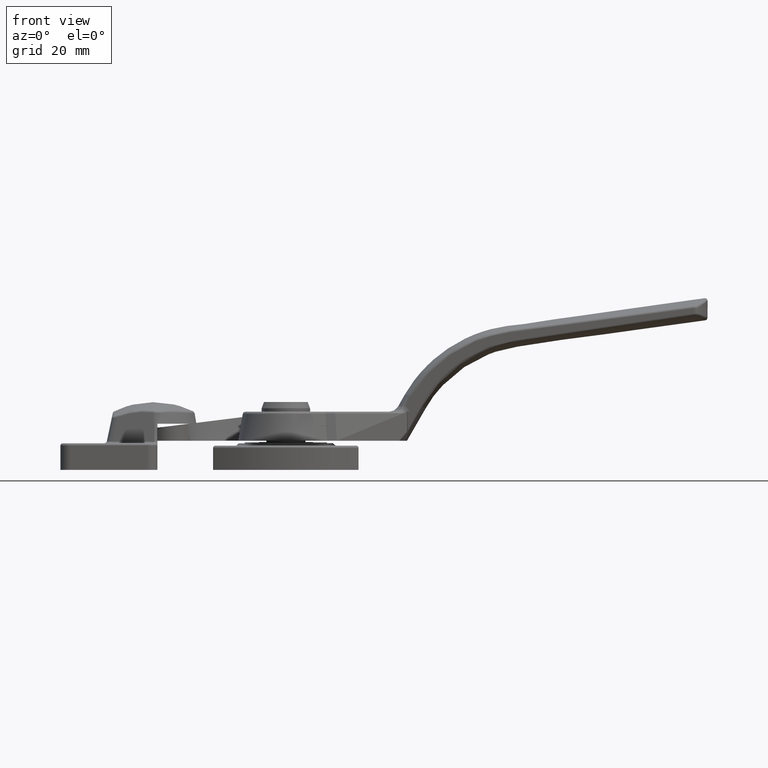
[diagram: clean part render]
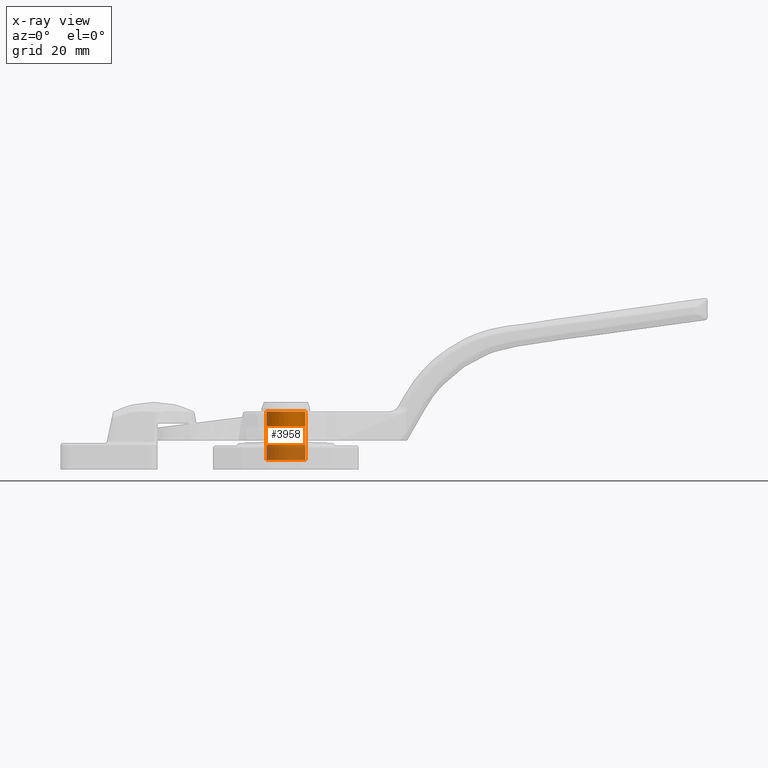
[diagram: x-ray — body ghosted, one internal face saturated and labeled with its STEP entity id]
A machine part, front view, then the same camera in x-ray: the body is ghosted and one INTERNAL B-rep face — a face not visible from any outside direction — is saturated and labeled: STEP entity #3958.
In plain terms, the highlighted cylindrical surface (bore or boss wall) has radius 4 mm, axis along (0, 0, 1).
Its self-contained STEP definition (entity closure, byte-faithful):
#151=FACE_BOUND('',#1207,.T.);
#685=CYLINDRICAL_SURFACE('',#4399,4.);
#905=FACE_OUTER_BOUND('',#1206,.T.);
#1206=EDGE_LOOP('',(#3367));
#1207=EDGE_LOOP('',(#3368));
#1481=CIRCLE('',#4398,4.);
#1482=CIRCLE('',#4400,4.);
#1893=VERTEX_POINT('',#7451);
#1894=VERTEX_POINT('',#7454);
#2400=EDGE_CURVE('',#1893,#1893,#1481,.T.);
#2401=EDGE_CURVE('',#1894,#1894,#1482,.T.);
#3367=ORIENTED_EDGE('',*,*,#2400,.T.);
#3368=ORIENTED_EDGE('',*,*,#2401,.F.);
#3958=ADVANCED_FACE('',(#905,#151),#685,.T.);
#4398=AXIS2_PLACEMENT_3D('',#7452,#5381,#5382);
#4399=AXIS2_PLACEMENT_3D('',#7453,#5383,#5384);
#4400=AXIS2_PLACEMENT_3D('',#7455,#5385,#5386);
#5381=DIRECTION('center_axis',(-1.26161707343768E-16,1.,0.));
#5382=DIRECTION('ref_axis',(-1.,-1.26161707343768E-16,0.));
#5383=DIRECTION('center_axis',(-1.26161707343768E-16,1.,0.));
#5384=DIRECTION('ref_axis',(-1.,-1.26161707343768E-16,0.));
#5385=DIRECTION('center_axis',(-1.26161707343768E-16,1.,0.));
#5386=DIRECTION('ref_axis',(-1.,-1.26161707343768E-16,0.));
#7451=CARTESIAN_POINT('',(4.,-12.,-4.89858719658941E-16));
#7452=CARTESIAN_POINT('Origin',(1.51394048812521E-15,-12.,0.));
#7453=CARTESIAN_POINT('Origin',(8.83131951406375E-16,-7.,0.));
#7454=CARTESIAN_POINT('',(4.,-2.,-4.89858719658941E-16));
#7455=CARTESIAN_POINT('Origin',(2.52323414687536E-16,-2.,0.));